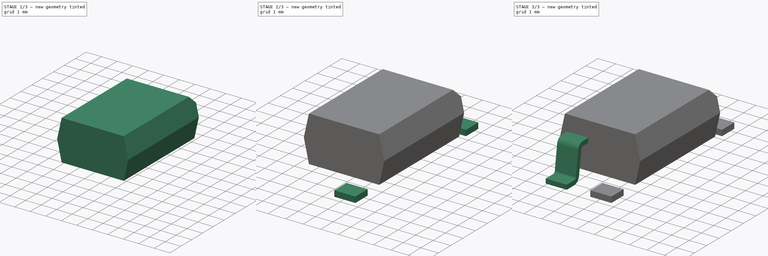
[diagram: build sequence overview — one tinted view per stage of 3, left to right]
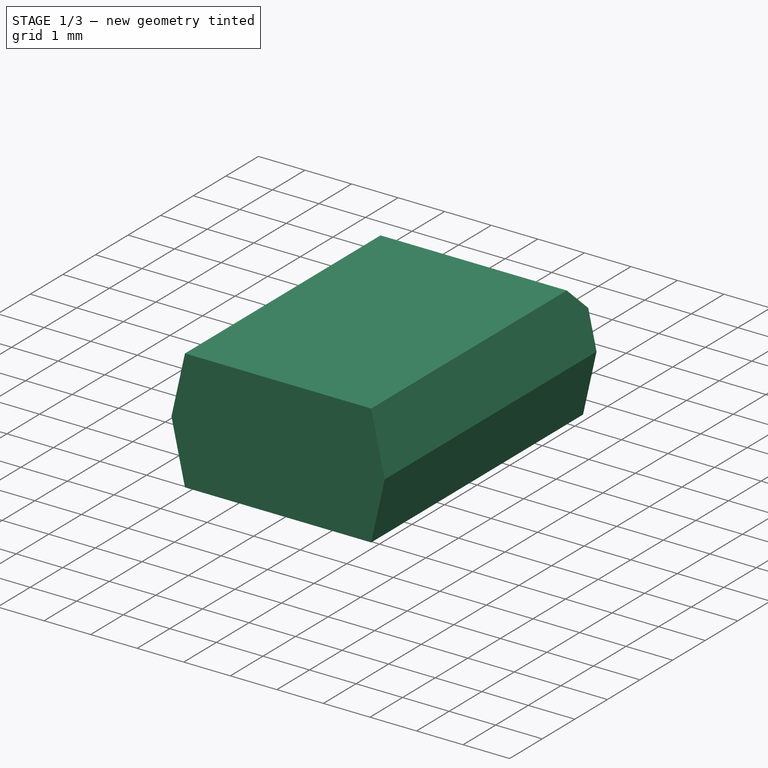
[diagram: stage 1 of 3 — iso view after this stage's code; geometry added in this stage tinted green]
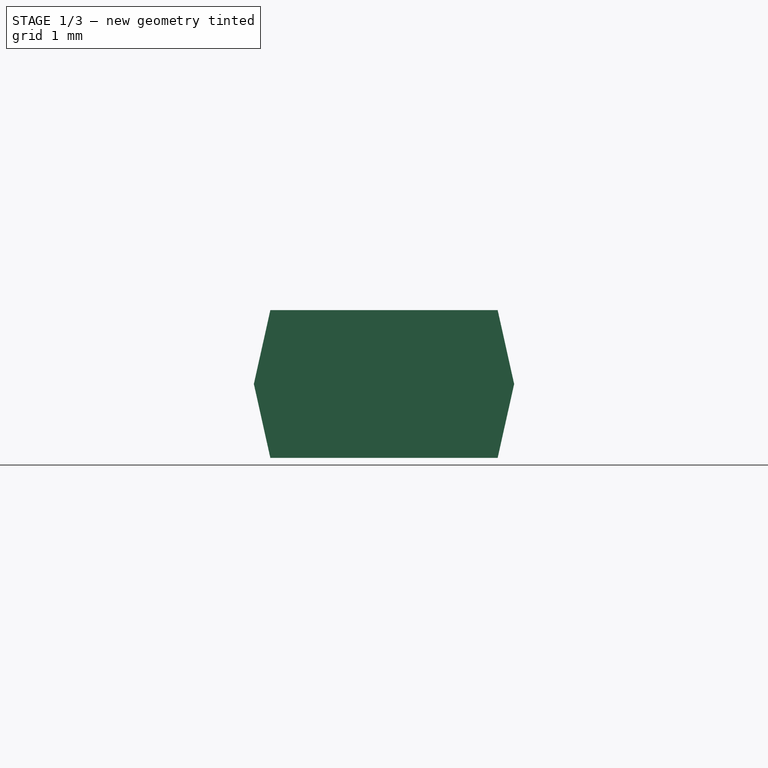
[diagram: stage 1 of 3 — front view after this stage's code; geometry added in this stage tinted green]
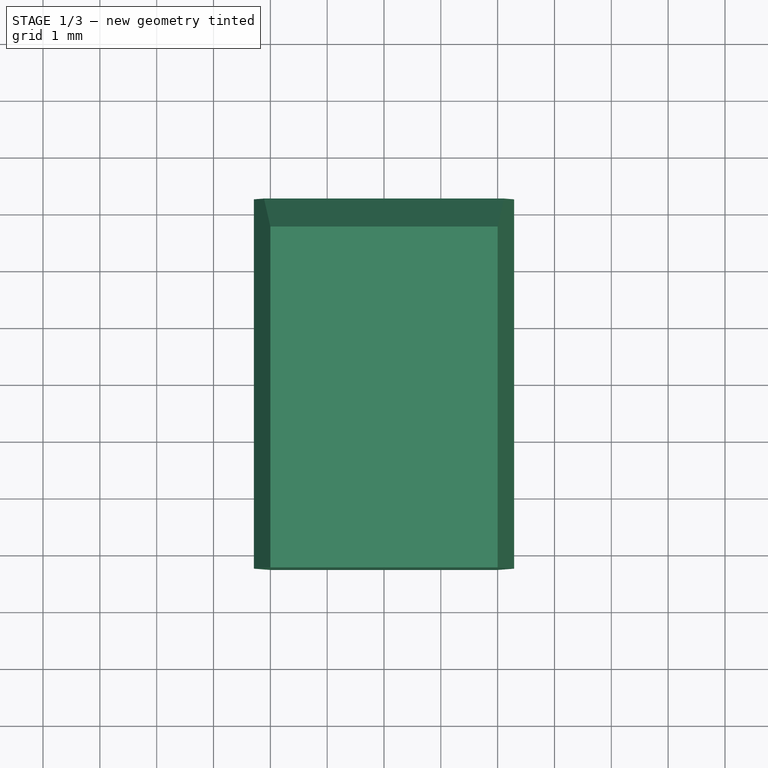
[diagram: stage 1 of 3 — top view after this stage's code; geometry added in this stage tinted green]
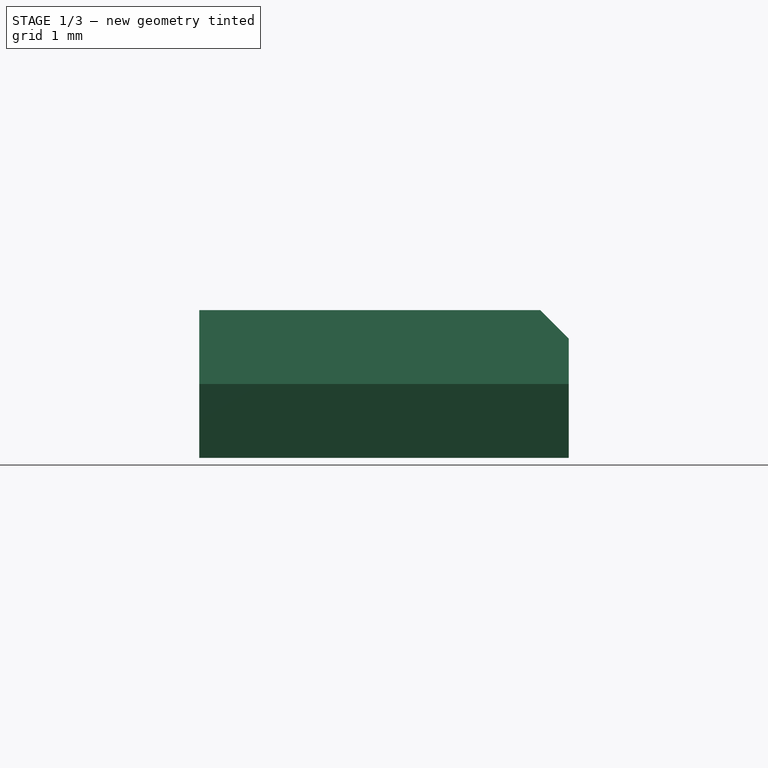
[diagram: stage 1 of 3 — right view after this stage's code; geometry added in this stage tinted green]
FCSTD DOCUMENT  (FreeCAD 0.16R6452 (Git))
Label: PC817
License: All rights reserved
LicenseURL: http://en.wikipedia.org/wiki/All_rights_reserved
objects: Sketcher::SketchObject×6, PartDesign::Pad×2, Part::Sweep×1, PartDesign::Chamfer×1, Part::MultiFuse×1
note: 13 computed .brp shape members not serialized (recipe doc carries the construction recipe); baked Part::Feature solids carry a one-line shape summary decoded from their .brp

FEATURE [Sketcher::SketchObject] Sketch  label="Base"
  Placement = pos=(0,0,0) rot=(0,0.707107,0.707107;3.14159rad)
  sketch-geometry (7):
    g0: LineSegment StartX=-2 StartY=2.9 StartZ=0 EndX=-2.29 EndY=1.6 EndZ=0
    g1: LineSegment StartX=-2.29 StartY=1.6 StartZ=0 EndX=-2 EndY=0.3 EndZ=0
    g2: LineSegment StartX=-2 StartY=0.3 StartZ=0 EndX=2 EndY=0.3 EndZ=0
    g3: LineSegment StartX=2 StartY=0.3 StartZ=0 EndX=2.29 EndY=1.6 EndZ=0
    g4: LineSegment StartX=2.29 StartY=1.6 StartZ=0 EndX=2 EndY=2.9 EndZ=0
    g5: LineSegment StartX=2 StartY=2.9 StartZ=0 EndX=-2 EndY=2.9 EndZ=0
    g6: LineSegment [constr] StartX=0 StartY=0.3 StartZ=0 EndX=0 EndY=2.9 EndZ=0
  constraints (20):
    c: Coincident(g0,g1)
    c: Coincident(g1,g2)
    c: Horizontal(g2)
    c: Coincident(g2,g3)
    c: Coincident(g3,g4)
    c: Coincident(g4,g5)
    c: Horizontal(g5)
    c: Coincident(g0,g5)
    c: Equal(g0,g4)
    c: Equal(g1,g3)
    c: Equal(g5,g2)
    c: DistanceX(g0,g3) = 4.58
    c: Vertical(g6)
    c: Symmetric(g5,g5,g6)
    c: Symmetric(g2,g2,g6)
    c: DistanceY(g6) = 2.6
    c: Equal(g3,g4)
    c: PointOnObject(g6,g-2)
    c: DistanceY(g-1,g6) = 0.3
    c: DistanceX(g5) = -4
FEATURE [PartDesign::Pad] Pad  label="BasePad"
  Length = 6.5
  Length2 = 100
  Midplane = true
  Placement = pos=(0,0,0) rot=(0,0.707107,0.707107;3.14159rad)
  Sketch = -> Sketch
  Type = 0
FEATURE [PartDesign::Chamfer] Chamfer  label="PinMark_Chamfer"
  Base = -> Pad [Edge18]
  Placement = pos=(0,0,0) rot=(0,0.707107,0.707107;3.14159rad)
  Size = 0.5
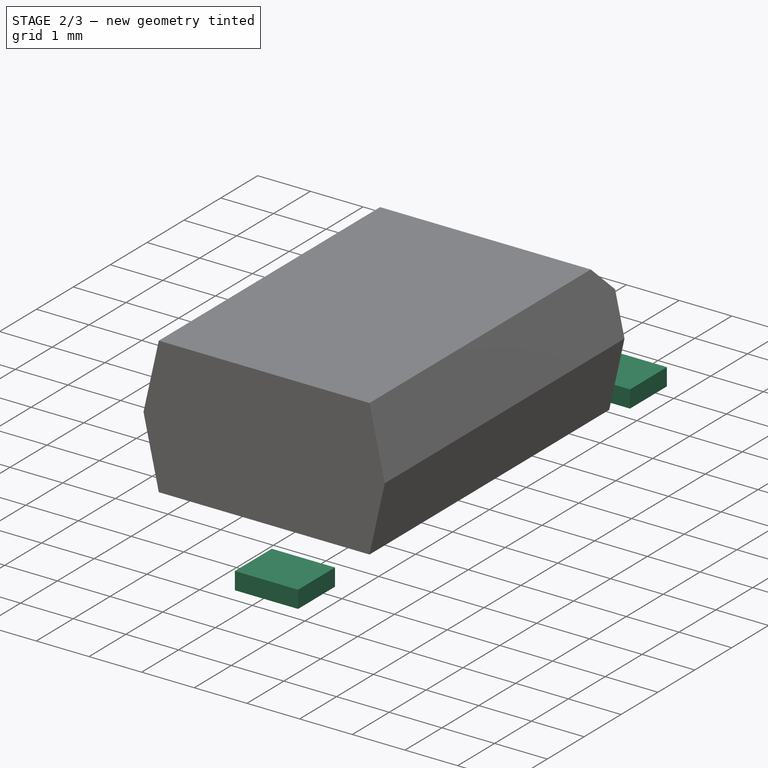
[diagram: stage 2 of 3 — iso view after this stage's code; geometry added in this stage tinted green]
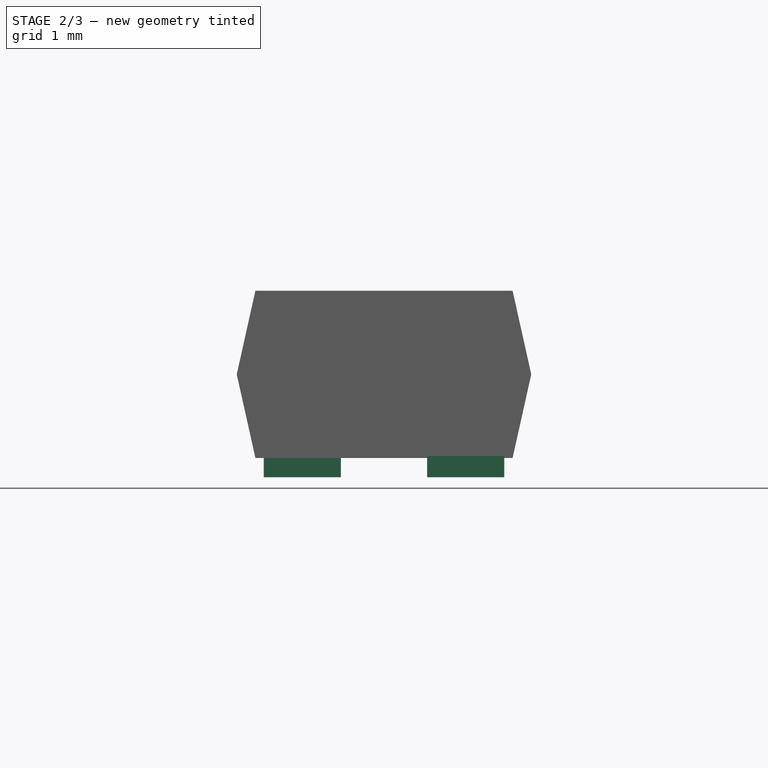
[diagram: stage 2 of 3 — front view after this stage's code; geometry added in this stage tinted green]
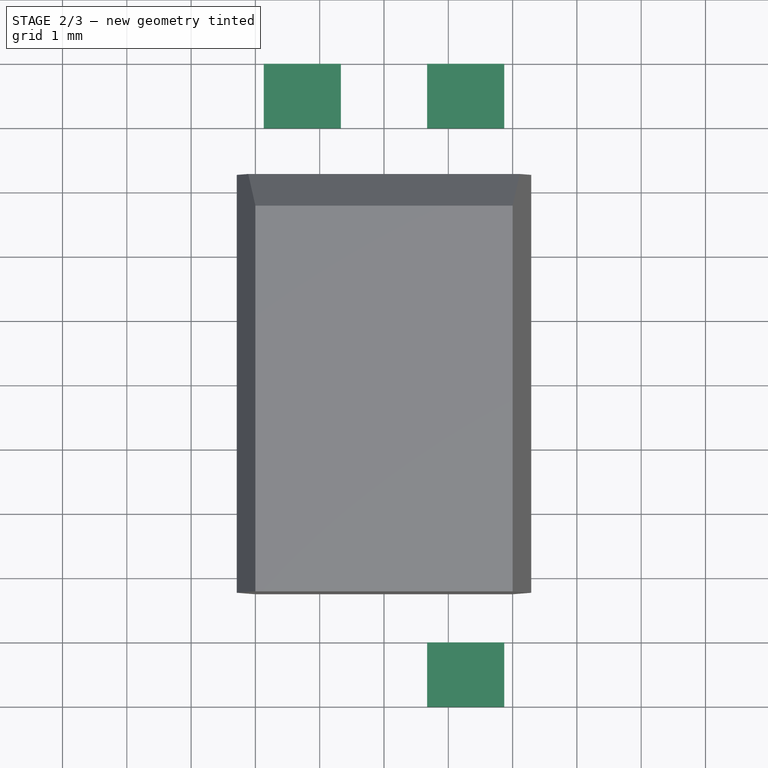
[diagram: stage 2 of 3 — top view after this stage's code; geometry added in this stage tinted green]
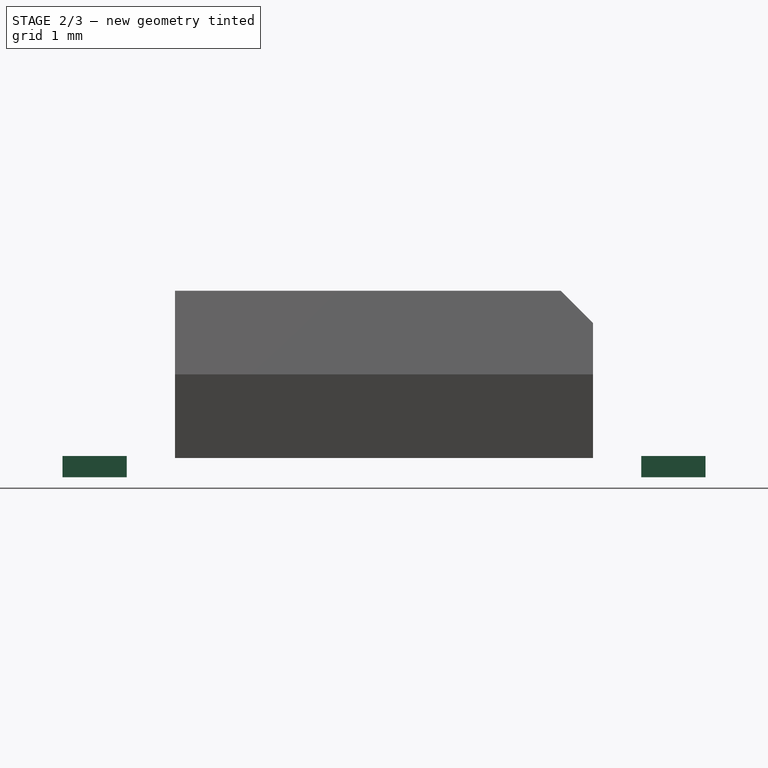
[diagram: stage 2 of 3 — right view after this stage's code; geometry added in this stage tinted green]
FEATURE [Sketcher::SketchObject] Sketch003  label="Pins"
  sketch-geometry (15):
    g0: LineSegment StartX=0.67 StartY=-4 StartZ=0 EndX=1.87 EndY=-4 EndZ=0
    g1: LineSegment StartX=1.87 StartY=-4 StartZ=0 EndX=1.87 EndY=-5 EndZ=0
    g2: LineSegment StartX=1.87 StartY=-5 StartZ=0 EndX=0.67 EndY=-5 EndZ=0
    g3: LineSegment StartX=0.67 StartY=-5 StartZ=0 EndX=0.67 EndY=-4 EndZ=0
    g4: LineSegment StartX=0.67 StartY=5 StartZ=0 EndX=1.87 EndY=5 EndZ=0
    g5: LineSegment StartX=1.87 StartY=5 StartZ=0 EndX=1.87 EndY=4 EndZ=0
    g6: LineSegment StartX=1.87 StartY=4 StartZ=0 EndX=0.67 EndY=4 EndZ=0
    g7: LineSegment StartX=0.67 StartY=4 StartZ=0 EndX=0.67 EndY=5 EndZ=0
    g8: LineSegment StartX=-1.87 StartY=5 StartZ=0 EndX=-0.67 EndY=5 EndZ=0
    g9: LineSegment StartX=-0.67 StartY=5 StartZ=0 EndX=-0.67 EndY=4 EndZ=0
    g10: LineSegment StartX=-0.67 StartY=4 StartZ=0 EndX=-1.87 EndY=4 EndZ=0
    g11: LineSegment StartX=-1.87 StartY=4 StartZ=0 EndX=-1.87 EndY=5 EndZ=0
    g12: LineSegment [constr] StartX=-1.27 StartY=5 StartZ=0 EndX=1.27 EndY=5 EndZ=0
    g13: LineSegment [constr] StartX=-1.27 StartY=-5 StartZ=0 EndX=1.27 EndY=-5 EndZ=0
    g14: LineSegment [constr] StartX=0 StartY=-5 StartZ=0 EndX=0 EndY=5 EndZ=0
  constraints (42):
    c: Coincident(g0,g1)
    c: Coincident(g1,g2)
    c: Coincident(g2,g3)
    c: Coincident(g3,g0)
    c: Horizontal(g0)
    c: Horizontal(g2)
    c: Vertical(g1)
    c: Vertical(g3)
    c: Coincident(g4,g5)
    c: Coincident(g5,g6)
    c: Coincident(g6,g7)
    c: Coincident(g7,g4)
    c: Horizontal(g4)
    c: Horizontal(g6)
    c: Vertical(g5)
    c: Vertical(g7)
    c: Coincident(g8,g9)
    c: Coincident(g9,g10)
    c: Coincident(g10,g11)
    c: Coincident(g11,g8)
    c: Horizontal(g8)
    c: Horizontal(g10)
    c: Vertical(g9)
    c: Vertical(g11)
    c: Equal(g9,g5)
    c: Equal(g5,g1)
    c: Equal(g8,g4)
    c: Equal(g4,g0)
    c: DistanceX(g8) = 1.2
    c: DistanceY(g5) = -1
    c: Horizontal(g12)
    c: Horizontal(g13)
    c: Vertical(g14)
    c: Symmetric(g12,g12,g14)
    c: Symmetric(g13,g13,g14)
    c: Equal(g13,g12)
    c: Symmetric(g14,g14,g-1)
    c: DistanceY(g14) = 10
    c: Symmetric(g8,g8,g12)
    c: Symmetric(g4,g4,g12)
    c: DistanceX(g12) = 2.54
    c: Symmetric(g2,g2,g13)
FEATURE [PartDesign::Pad] Pad001  label="Pins_Pad"
  Length = 0.33
  Length2 = 100
  Sketch = -> Sketch003
  Type = 0
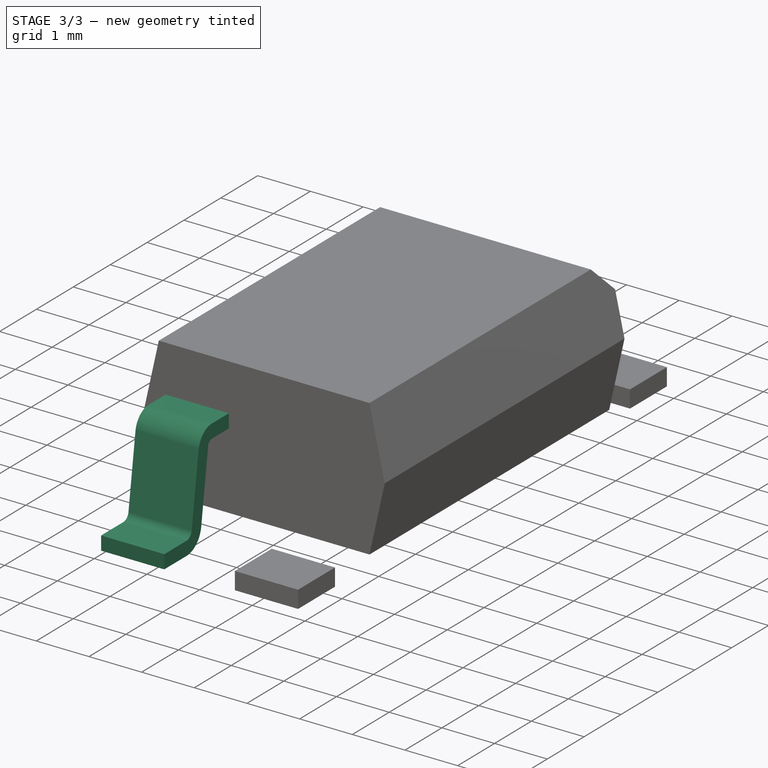
[diagram: stage 3 of 3 — iso view after this stage's code; geometry added in this stage tinted green]
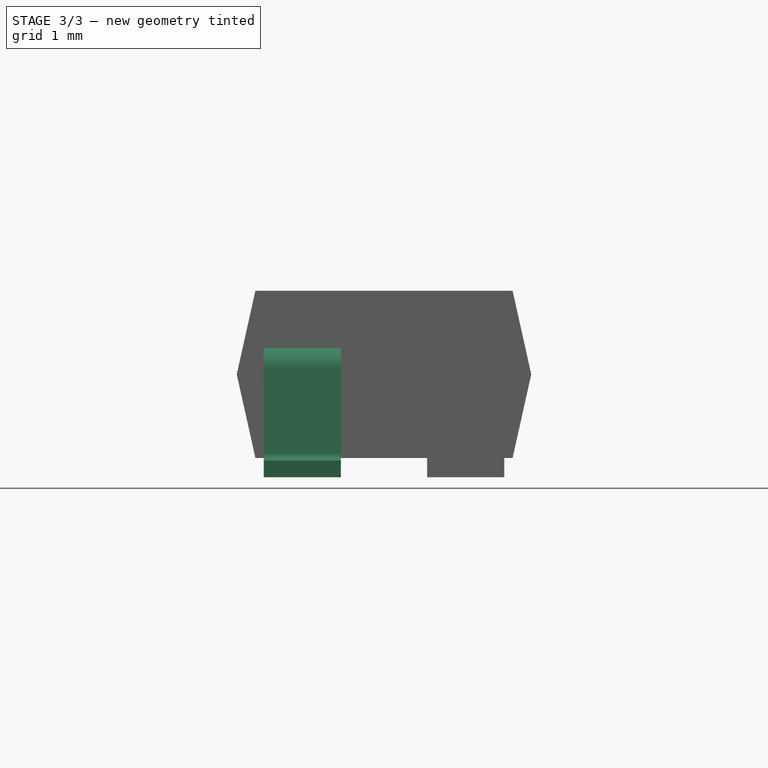
[diagram: stage 3 of 3 — front view after this stage's code; geometry added in this stage tinted green]
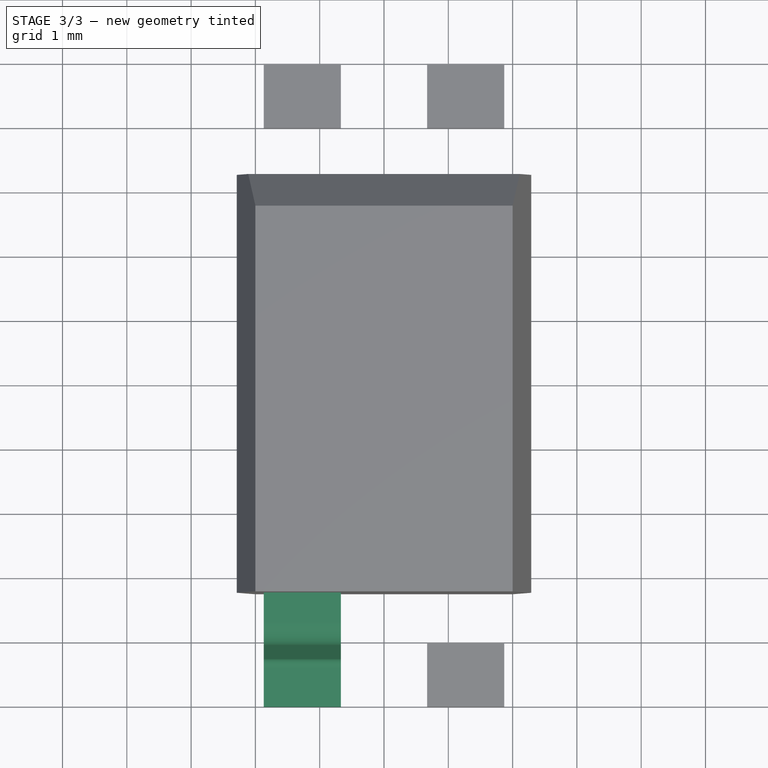
[diagram: stage 3 of 3 — top view after this stage's code; geometry added in this stage tinted green]
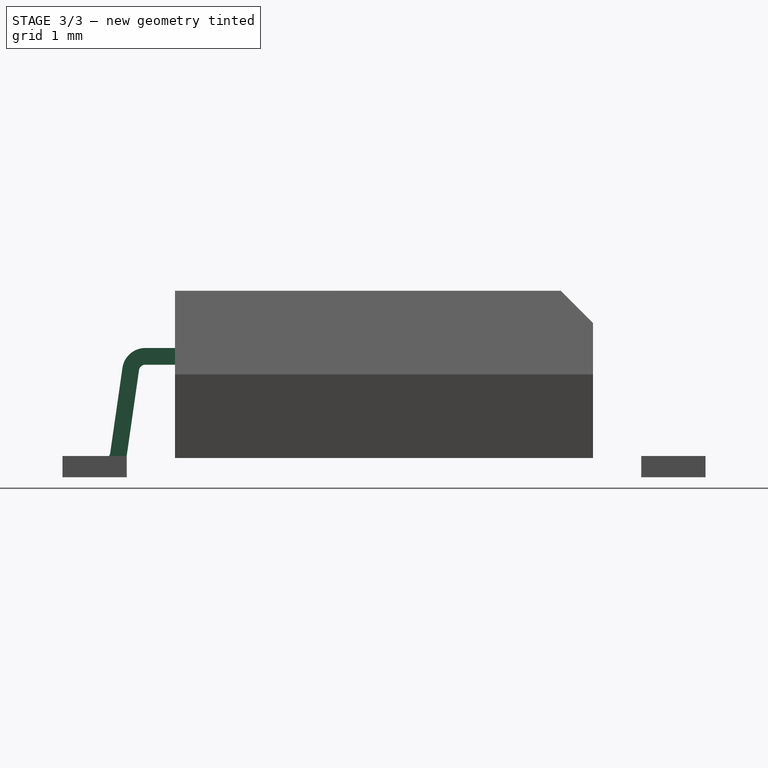
[diagram: stage 3 of 3 — right view after this stage's code; geometry added in this stage tinted green]
FEATURE [Sketcher::SketchObject] Sketch001  label="PinPath"
  Placement = pos=(0,0,0) rot=(0.57735,0.57735,0.57735;2.0944rad)
  expr: Constraints[12] = -(7.62mm) / 2
  expr: Constraints[2] = -(10mm) / 2
  sketch-geometry (5):
    g0: LineSegment StartX=-5 StartY=1.5e-11 StartZ=0 EndX=-4.39593 EndY=1.5e-11 EndZ=0
    g1: LineSegment StartX=-2.71102 StartY=1.75 StartZ=0 EndX=-3.71102 EndY=1.75 EndZ=0
    g2: ArcOfCircle CenterX=-3.71102 CenterY=1.65 CenterZ=0 NormalX=0 NormalY=0 NormalZ=1 Radius=0.1 StartAngle=1.5708 EndAngle=2.99873
    g3: LineSegment StartX=-3.81 StartY=1.66424 StartZ=0 EndX=-4 EndY=0.343059 EndZ=0
    g4: ArcOfCircle CenterX=-4.39593 CenterY=0.4 CenterZ=0 NormalX=0 NormalY=0 NormalZ=1 Radius=0.4 StartAngle=4.71238 EndAngle=6.14035
  constraints (18):
    c: Horizontal(g0)
    c: Horizontal(g1)
    c: DistanceX(g-1,g0) = -5
    c: PointOnObject(g0,g-1)
    c: DistanceX(g1) = -1
    c: Radius(g2) = 0.1
    c: DistanceY(g-1,g1) = 1.75
    c: Coincident(g2,g1)
    c: Coincident(g2,g3)
    c: Coincident(g4,g3)
    c: Coincident(g0,g4)
    c: Radius(g4) = 0.4
    c: DistanceX(g-1,g2) = -3.81
    c: Tangent(g2,g3)
    c: Tangent(g4,g3)
    c: Tangent(g0,g4)
    c: Tangent(g2,g1)
    c: DistanceX(g3,g0) = -1
FEATURE [Sketcher::SketchObject] Sketch002  label="Pin1"
  Placement = pos=(0,-5,0) rot=(1,0,0;1.5708rad)
  sketch-geometry (5):
    g0: LineSegment StartX=-1.87 StartY=0.26 StartZ=0 EndX=-0.67 EndY=0.26 EndZ=0
    g1: LineSegment StartX=-0.67 StartY=0.26 StartZ=0 EndX=-0.67 EndY=0 EndZ=0
    g2: LineSegment StartX=-0.67 StartY=0 StartZ=0 EndX=-1.87 EndY=0 EndZ=0
    g3: LineSegment StartX=-1.87 StartY=0 StartZ=0 EndX=-1.87 EndY=0.26 EndZ=0
    g4: LineSegment [constr] StartX=-1.27 StartY=0 StartZ=0 EndX=1.27 EndY=0 EndZ=0
  constraints (14):
    c: Coincident(g0,g1)
    c: Coincident(g1,g2)
    c: Coincident(g2,g3)
    c: Coincident(g3,g0)
    c: Horizontal(g0)
    c: Horizontal(g2)
    c: Vertical(g1)
    c: Vertical(g3)
    c: Horizontal(g4)
    c: DistanceX(g4) = 2.54
    c: Symmetric(g4,g4,g-1)
    c: Symmetric(g2,g2,g4)
    c: DistanceX(g2) = -1.2
    c: DistanceY(g3) = 0.26
FEATURE [Part::Sweep] Sweep  label="Pin1_Sweep"
  Frenet = false
  Sections = -> [Sketch002]
  Solid = true
  Spine = -> Sketch001 [Edge1,Edge2,Edge3,Edge4,Edge5]
  Transition = 1
FEATURE [Part::MultiFuse] Fusion
  Shapes = -> [Chamfer,Pad001,Sweep]
FEATURE [Sketcher::SketchObject] Sketch004  label="LandPattern_Helper"
  expr: Constraints[37] = 10mm + 1mm
  sketch-geometry (16):
    g0: LineSegment StartX=0.57 StartY=-3.5 StartZ=0 EndX=1.97 EndY=-3.5 EndZ=0
    g1: LineSegment StartX=1.97 StartY=-3.5 StartZ=0 EndX=1.97 EndY=-5.5 EndZ=0
    g2: LineSegment StartX=1.97 StartY=-5.5 StartZ=0 EndX=0.57 EndY=-5.5 EndZ=0
    g3: LineSegment StartX=0.57 StartY=-5.5 StartZ=0 EndX=0.57 EndY=-3.5 EndZ=0
    g4: LineSegment StartX=0.57 StartY=5.5 StartZ=0 EndX=1.97 EndY=5.5 EndZ=0
    g5: LineSegment StartX=1.97 StartY=5.5 StartZ=0 EndX=1.97 EndY=3.5 EndZ=0
    g6: LineSegment StartX=1.97 StartY=3.5 StartZ=0 EndX=0.57 EndY=3.5 EndZ=0
    g7: LineSegment StartX=0.57 StartY=3.5 StartZ=0 EndX=0.57 EndY=5.5 EndZ=0
    g8: LineSegment StartX=-1.97 StartY=5.5 StartZ=0 EndX=-0.57 EndY=5.5 EndZ=0
    g9: LineSegment StartX=-0.57 StartY=5.5 StartZ=0 EndX=-0.57 EndY=3.5 EndZ=0
    g10: LineSegment StartX=-0.57 StartY=3.5 StartZ=0 EndX=-1.97 EndY=3.5 EndZ=0
    g11: LineSegment StartX=-1.97 StartY=3.5 StartZ=0 EndX=-1.97 EndY=5.5 EndZ=0
    g12: LineSegment [constr] StartX=-1.27 StartY=5.5 StartZ=0 EndX=1.27 EndY=5.5 EndZ=0
    g13: LineSegment [constr] StartX=-1.27 StartY=-5.5 StartZ=0 EndX=1.27 EndY=-5.5 EndZ=0
    g14: LineSegment [constr] StartX=0 StartY=-5.5 StartZ=0 EndX=0 EndY=5.5 EndZ=0
    g15: GeomPoint [constr] X=1.27 Y=-4.5 Z=0
  constraints (45):
    c: Coincident(g0,g1)
    c: Coincident(g1,g2)
    c: Coincident(g2,g3)
    c: Coincident(g3,g0)
    c: Horizontal(g0)
    c: Horizontal(g2)
    c: Vertical(g1)
    c: Vertical(g3)
    c: Coincident(g4,g5)
    c: Coincident(g5,g6)
    c: Coincident(g6,g7)
    c: Coincident(g7,g4)
    c: Horizontal(g4)
    c: Horizontal(g6)
    c: Vertical(g5)
    c: Vertical(g7)
    c: Coincident(g8,g9)
    c: Coincident(g9,g10)
    c: Coincident(g10,g11)
    c: Coincident(g11,g8)
    c: Horizontal(g8)
    c: Horizontal(g10)
    c: Vertical(g9)
    c: Vertical(g11)
    c: Equal(g9,g5)
    c: Equal(g5,g1)
    c: Equal(g8,g4)
    c: Equal(g4,g0)
    c: DistanceX(g8) = 1.4
    c: DistanceY(g5) = -2
    c: Horizontal(g12)
    c: Horizontal(g13)
    c: Vertical(g14)
    c: Symmetric(g12,g12,g14)
    c: Symmetric(g13,g13,g14)
    c: Equal(g13,g12)
    c: Symmetric(g14,g14,g-1)
    c: DistanceY(g14) = 11
    c: Symmetric(g8,g8,g12)
    c: Symmetric(g4,g4,g12)
    c: DistanceX(g12) = 2.54
    c: Symmetric(g2,g2,g13)
    c: DistanceX(g14,g13) = 1.27
    c: Symmetric(g0,g2,g15)
    c: DistanceY(g-1,g15) = -4.5
FEATURE [Sketcher::SketchObject] Sketch005  label="SilkScreen"
  sketch-geometry (4):
    g0: LineSegment StartX=-2.3 StartY=3.3 StartZ=0 EndX=2.3 EndY=3.3 EndZ=0
    g1: LineSegment StartX=2.3 StartY=3.3 StartZ=0 EndX=2.3 EndY=-3.3 EndZ=0
    g2: LineSegment StartX=2.3 StartY=-3.3 StartZ=0 EndX=-2.3 EndY=-3.3 EndZ=0
    g3: LineSegment StartX=-2.3 StartY=-3.3 StartZ=0 EndX=-2.3 EndY=3.3 EndZ=0
  constraints (13):
    c: Coincident(g0,g1)
    c: Coincident(g1,g2)
    c: Coincident(g2,g3)
    c: Coincident(g3,g0)
    c: Horizontal(g0)
    c: Horizontal(g2)
    c: Vertical(g1)
    c: Vertical(g3)
    c: Symmetric(g0,g2,g-1)
    c: DistanceY(g1) = -6.6
    c: DistanceX(g0) = 4.6
    c: DistanceX(g1) = 2.3
    c: DistanceY(g1) = -3.3
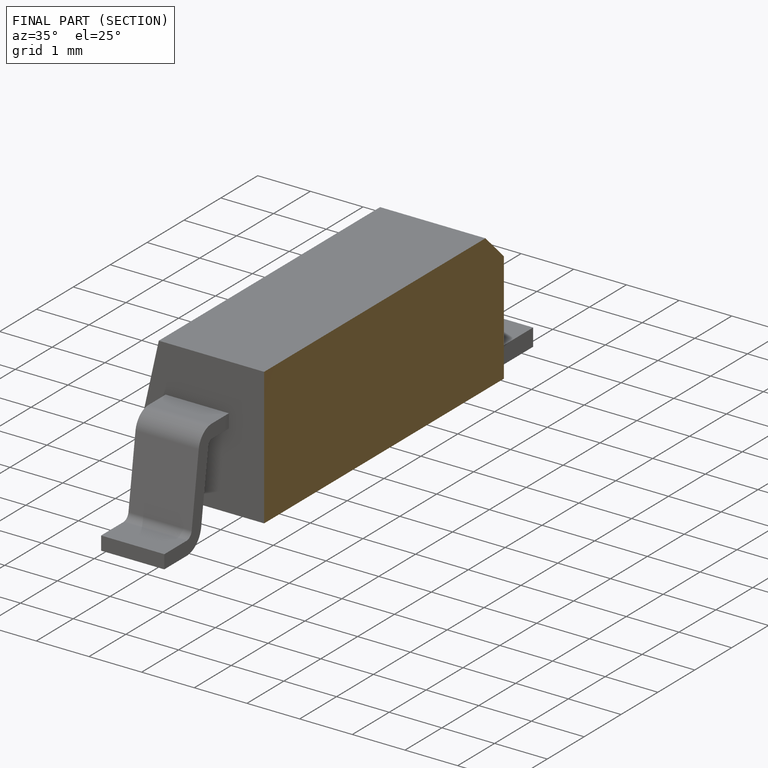
[diagram: finished part — half-section view (interior)]
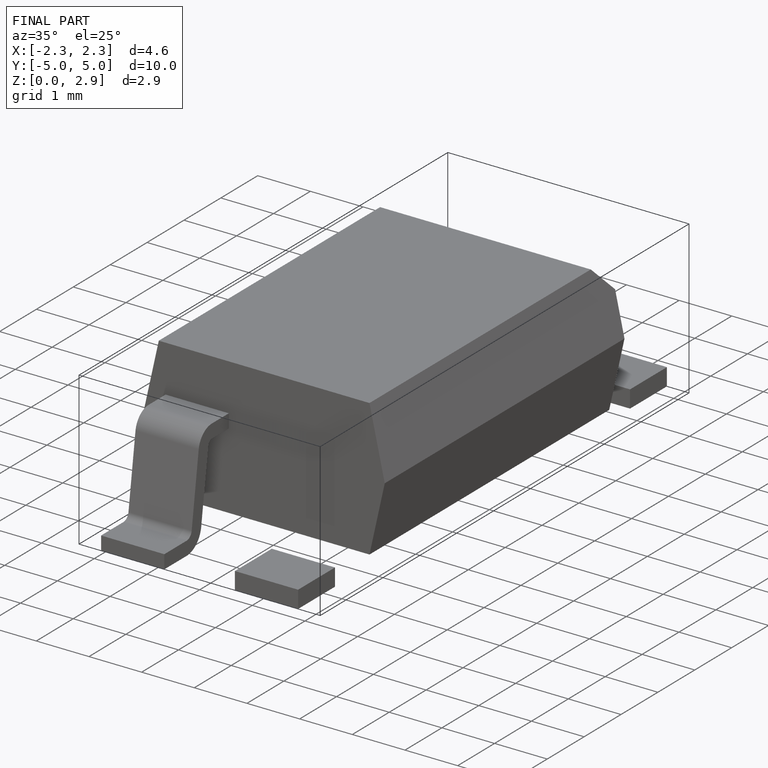
[diagram: finished part — iso view with bounding-box wireframe]
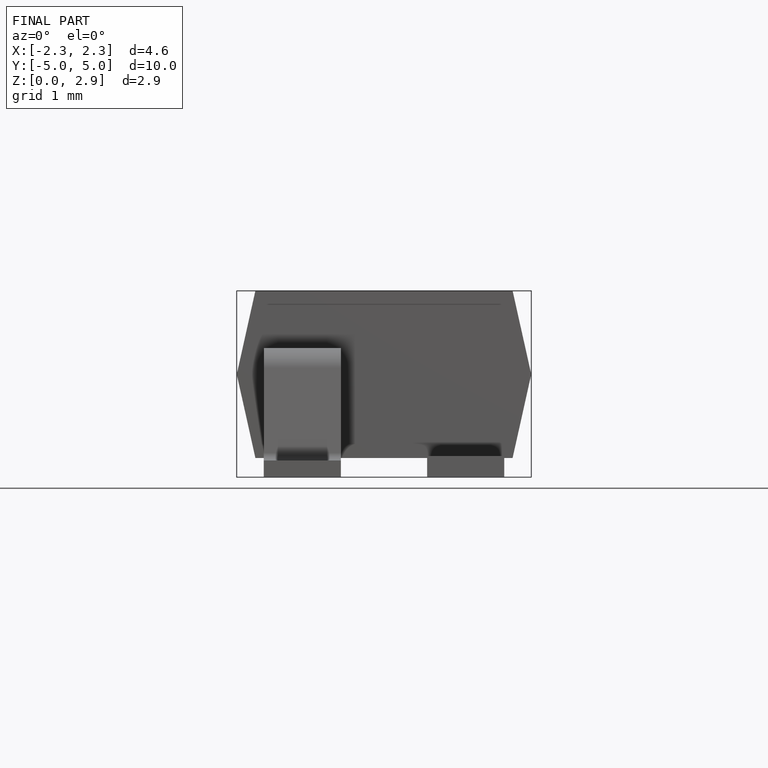
[diagram: finished part — front view with bounding-box wireframe]
